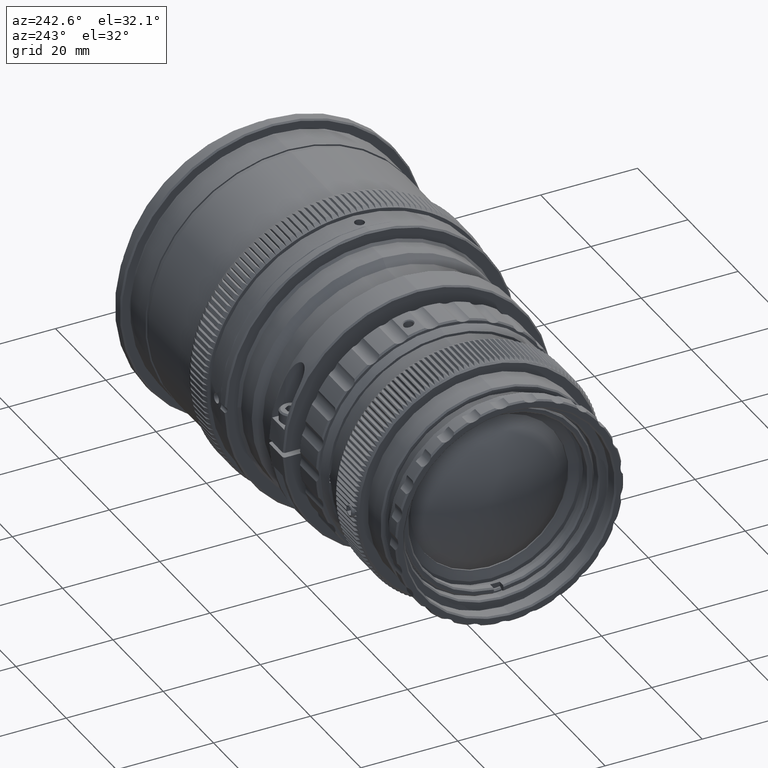
[diagram: clean part render]
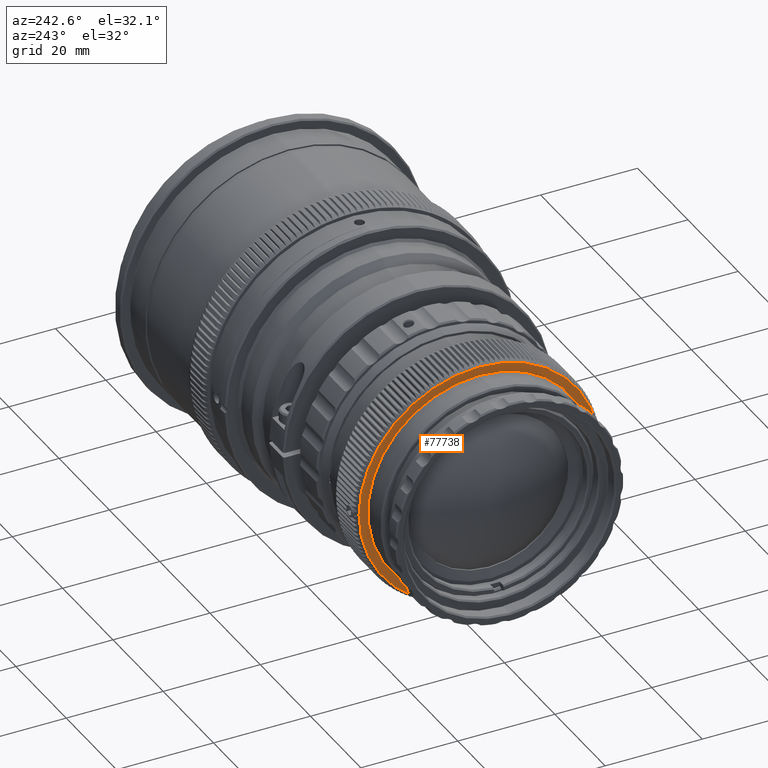
[diagram: same view with one face highlighted and labeled with its STEP entity id]
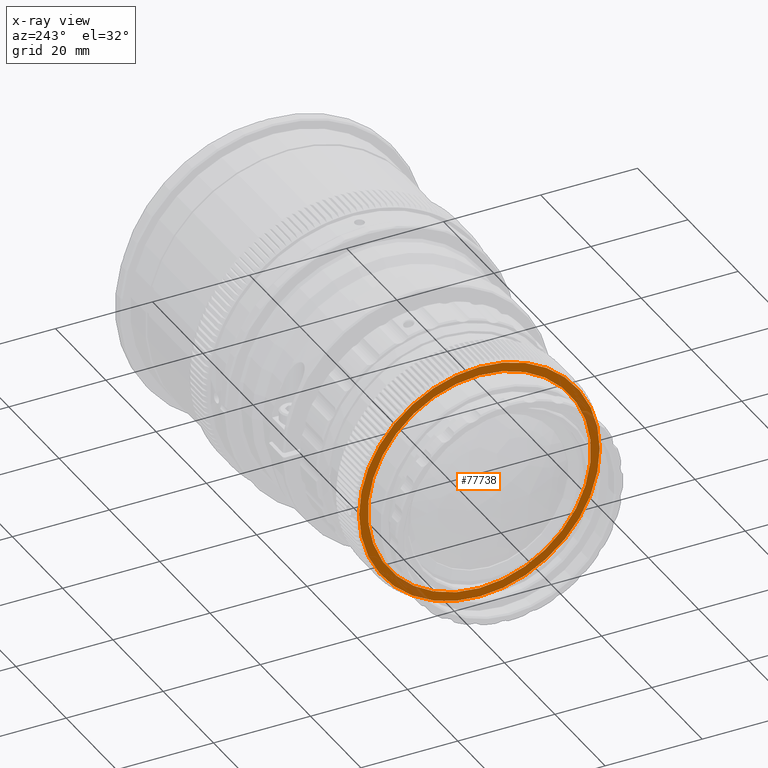
[diagram: x-ray of the same camera — body ghosted, the highlighted face saturated]
A machine part, auxiliary view. The second image highlights one B-rep face of the part: STEP entity #77738.
The next image is the same camera in x-ray: the body ghosted, the highlighted face saturated — about 5% of this face is hidden behind the body in this view.
In plain terms, the highlighted planar face has unit normal (1, 0, 0).
Its self-contained STEP definition (entity closure, byte-faithful):
#2964 = AXIS2_PLACEMENT_3D ( 'NONE', #62123, #24009, #43151 ) ;
#3328 = ORIENTED_EDGE ( 'NONE', *, *, #41935, .F. ) ;
#5226 = EDGE_LOOP ( 'NONE', ( #3328, #55240 ) ) ;
#10912 = DIRECTION ( 'NONE',  ( 0.0000000000000000000, 0.0000000000000000000, -1.000000000000000000 ) ) ;
#11181 = DIRECTION ( 'NONE',  ( 1.000000000000000000, 0.0000000000000000000, 0.0000000000000000000 ) ) ;
#15090 = VERTEX_POINT ( 'NONE', #56373 ) ;
#17135 = EDGE_CURVE ( 'NONE', #51913, #30112, #78679, .T. ) ;
#19256 = AXIS2_PLACEMENT_3D ( 'NONE', #72090, #34023, #46787 ) ;
#19872 = DIRECTION ( 'NONE',  ( 1.000000000000000000, 0.0000000000000000000, 0.0000000000000000000 ) ) ;
#20720 = EDGE_CURVE ( 'NONE', #30112, #51913, #70411, .T. ) ;
#22594 = VERTEX_POINT ( 'NONE', #62706 ) ;
#23997 = AXIS2_PLACEMENT_3D ( 'NONE', #31543, #69628, #38994 ) ;
#24009 = DIRECTION ( 'NONE',  ( -1.000000000000000000, -0.0000000000000000000, -0.0000000000000000000 ) ) ;
#30112 = VERTEX_POINT ( 'NONE', #73023 ) ;
#31543 = CARTESIAN_POINT ( 'NONE',  ( -49.98314247734855800, 23.00000000000000000, 0.0000000000000000000 ) ) ;
#32402 = CARTESIAN_POINT ( 'NONE',  ( -49.98314247734855800, 0.0000000000000000000, 0.0000000000000000000 ) ) ;
#32729 = FACE_OUTER_BOUND ( 'NONE', #5226, .T. ) ;
#34023 = DIRECTION ( 'NONE',  ( -1.000000000000000000, -0.0000000000000000000, -0.0000000000000000000 ) ) ;
#34548 = EDGE_CURVE ( 'NONE', #15090, #22594, #74401, .T. ) ;
#38994 = DIRECTION ( 'NONE',  ( 0.0000000000000000000, 0.0000000000000000000, -1.000000000000000000 ) ) ;
#41881 = AXIS2_PLACEMENT_3D ( 'NONE', #49014, #11181, #10912 ) ;
#41935 = EDGE_CURVE ( 'NONE', #22594, #15090, #53841, .T. ) ;
#43151 = DIRECTION ( 'NONE',  ( 0.0000000000000000000, 0.0000000000000000000, 1.000000000000000000 ) ) ;
#46090 = EDGE_LOOP ( 'NONE', ( #82342, #62269 ) ) ;
#46787 = DIRECTION ( 'NONE',  ( 0.0000000000000000000, 0.0000000000000000000, 1.000000000000000000 ) ) ;
#48761 = CARTESIAN_POINT ( 'NONE',  ( -49.98314247734855800, 0.0000000000000000000, 23.00000000000000000 ) ) ;
#49014 = CARTESIAN_POINT ( 'NONE',  ( -49.98314247734855800, 0.0000000000000000000, 0.0000000000000000000 ) ) ;
#49023 = AXIS2_PLACEMENT_3D ( 'NONE', #32402, #19872, #76794 ) ;
#51913 = VERTEX_POINT ( 'NONE', #48761 ) ;
#53841 = CIRCLE ( 'NONE', #41881, 24.80717967697245300 ) ;
#55240 = ORIENTED_EDGE ( 'NONE', *, *, #34548, .F. ) ;
#56373 = CARTESIAN_POINT ( 'NONE',  ( -49.98314247734855800, 3.080426328276755600E-015, 24.80717967697245600 ) ) ;
#62123 = CARTESIAN_POINT ( 'NONE',  ( -49.98314247734855800, 0.0000000000000000000, 0.0000000000000000000 ) ) ;
#62269 = ORIENTED_EDGE ( 'NONE', *, *, #20720, .F. ) ;
#62702 = PLANE ( 'NONE',  #23997 ) ;
#62706 = CARTESIAN_POINT ( 'NONE',  ( -49.98314247734855800, 0.0000000000000000000, -24.80717967697245300 ) ) ;
#69628 = DIRECTION ( 'NONE',  ( 1.000000000000000000, 0.0000000000000000000, 0.0000000000000000000 ) ) ;
#70411 = CIRCLE ( 'NONE', #2964, 23.00000000000000000 ) ;
#72090 = CARTESIAN_POINT ( 'NONE',  ( -49.98314247734855800, 0.0000000000000000000, 0.0000000000000000000 ) ) ;
#73023 = CARTESIAN_POINT ( 'NONE',  ( -49.98314247734855800, 2.816687638038912400E-015, -23.00000000000000000 ) ) ;
#74401 = CIRCLE ( 'NONE', #49023, 24.80717967697245300 ) ;
#74514 = FACE_BOUND ( 'NONE', #46090, .T. ) ;
#76794 = DIRECTION ( 'NONE',  ( 0.0000000000000000000, 0.0000000000000000000, -1.000000000000000000 ) ) ;
#77738 = ADVANCED_FACE ( 'NONE', ( #32729, #74514 ), #62702, .F. ) ;
#78679 = CIRCLE ( 'NONE', #19256, 23.00000000000000000 ) ;
#82342 = ORIENTED_EDGE ( 'NONE', *, *, #17135, .F. ) ;